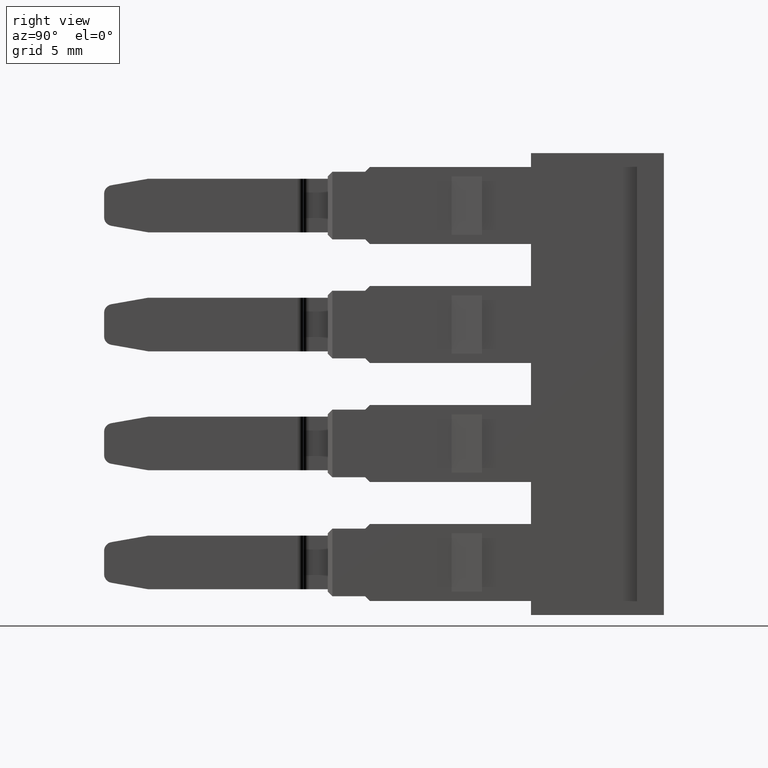
[diagram: clean part render]
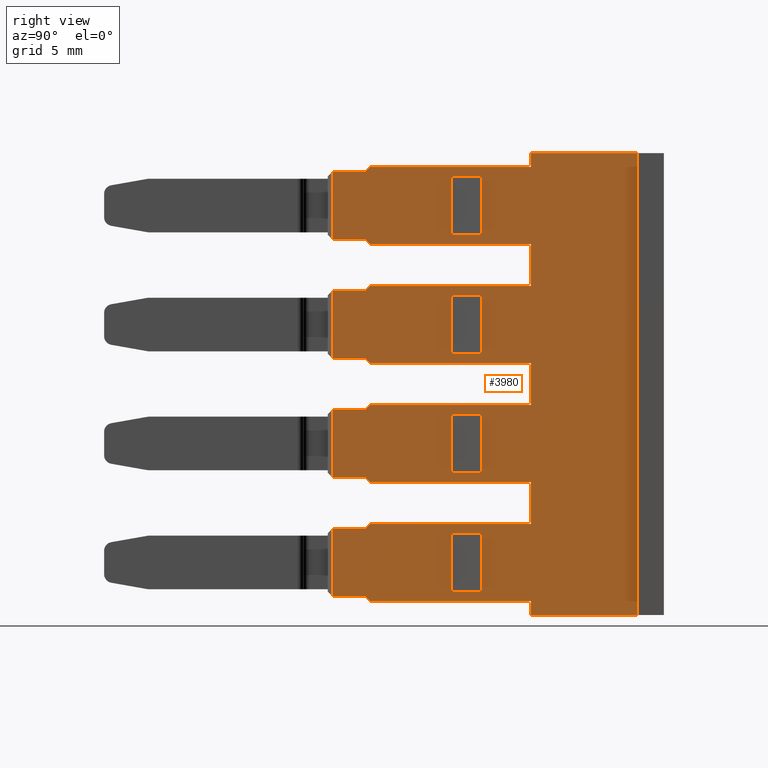
[diagram: same view with one face highlighted and labeled with its STEP entity id]
A machine part, right view. The second image highlights one B-rep face of the part: STEP entity #3980.
In plain terms, the highlighted planar face has unit normal (1, -0, 0).
Its self-contained STEP definition (entity closure, byte-faithful):
#33 = EDGE_LOOP ( 'NONE', ( #4130, #4099, #4142, #5327 ) ) ;
#44 = EDGE_LOOP ( 'NONE', ( #5335, #5314, #5322, #4113 ) ) ;
#181 = VERTEX_POINT ( 'NONE', #4825 ) ;
#183 = VERTEX_POINT ( 'NONE', #4777 ) ;
#185 = VERTEX_POINT ( 'NONE', #4865 ) ;
#186 = VERTEX_POINT ( 'NONE', #4863 ) ;
#201 = VERTEX_POINT ( 'NONE', #4874 ) ;
#220 = VERTEX_POINT ( 'NONE', #4867 ) ;
#221 = VERTEX_POINT ( 'NONE', #4853 ) ;
#223 = VERTEX_POINT ( 'NONE', #4886 ) ;
#224 = VERTEX_POINT ( 'NONE', #4839 ) ;
#225 = VERTEX_POINT ( 'NONE', #4846 ) ;
#232 = VERTEX_POINT ( 'NONE', #4854 ) ;
#235 = VERTEX_POINT ( 'NONE', #4857 ) ;
#238 = VERTEX_POINT ( 'NONE', #4860 ) ;
#239 = VERTEX_POINT ( 'NONE', #4861 ) ;
#240 = VERTEX_POINT ( 'NONE', #4862 ) ;
#241 = VERTEX_POINT ( 'NONE', #4895 ) ;
#244 = VERTEX_POINT ( 'NONE', #4944 ) ;
#245 = VERTEX_POINT ( 'NONE', #4902 ) ;
#246 = VERTEX_POINT ( 'NONE', #4933 ) ;
#248 = VERTEX_POINT ( 'NONE', #4953 ) ;
#249 = VERTEX_POINT ( 'NONE', #4952 ) ;
#250 = VERTEX_POINT ( 'NONE', #4940 ) ;
#251 = VERTEX_POINT ( 'NONE', #4930 ) ;
#252 = VERTEX_POINT ( 'NONE', #4929 ) ;
#254 = VERTEX_POINT ( 'NONE', #4942 ) ;
#255 = VERTEX_POINT ( 'NONE', #4905 ) ;
#256 = VERTEX_POINT ( 'NONE', #4938 ) ;
#257 = VERTEX_POINT ( 'NONE', #4903 ) ;
#258 = VERTEX_POINT ( 'NONE', #4943 ) ;
#260 = VERTEX_POINT ( 'NONE', #4928 ) ;
#261 = VERTEX_POINT ( 'NONE', #4906 ) ;
#262 = VERTEX_POINT ( 'NONE', #4926 ) ;
#263 = VERTEX_POINT ( 'NONE', #4911 ) ;
#264 = VERTEX_POINT ( 'NONE', #4924 ) ;
#265 = VERTEX_POINT ( 'NONE', #4934 ) ;
#266 = VERTEX_POINT ( 'NONE', #4948 ) ;
#270 = VERTEX_POINT ( 'NONE', #4927 ) ;
#271 = VERTEX_POINT ( 'NONE', #4937 ) ;
#272 = VERTEX_POINT ( 'NONE', #4916 ) ;
#273 = VERTEX_POINT ( 'NONE', #4946 ) ;
#274 = VERTEX_POINT ( 'NONE', #4909 ) ;
#275 = VERTEX_POINT ( 'NONE', #4954 ) ;
#277 = VERTEX_POINT ( 'NONE', #4935 ) ;
#284 = VERTEX_POINT ( 'NONE', #4947 ) ;
#285 = VERTEX_POINT ( 'NONE', #4951 ) ;
#286 = VERTEX_POINT ( 'NONE', #4897 ) ;
#287 = VERTEX_POINT ( 'NONE', #4955 ) ;
#289 = VERTEX_POINT ( 'NONE', #4956 ) ;
#290 = VERTEX_POINT ( 'NONE', #4900 ) ;
#291 = VERTEX_POINT ( 'NONE', #4904 ) ;
#295 = VERTEX_POINT ( 'NONE', #4912 ) ;
#297 = VERTEX_POINT ( 'NONE', #4914 ) ;
#609 = ORIENTED_EDGE ( 'NONE', *, *, #3549, .F. ) ;
#652 = EDGE_LOOP ( 'NONE', ( #609, #5333, #4089, #4131, #4110, #5312, #4109, #4140, #4138, #5329, #4101, #4116, #4128, #5321, #4114, #4117, #4106, #4119, #4124, #4105, #4107, #4091, #4108, #5328, #4104, #4090, #5319, #4120, #4103, #5318, #4135, #4125, #4102, #4121, #4137, #4112 ) ) ;
#661 = EDGE_LOOP ( 'NONE', ( #4134, #4095, #4122, #4136 ) ) ;
#666 = EDGE_LOOP ( 'NONE', ( #4132, #4092, #4118, #4115 ) ) ;
#751 = VECTOR ( 'NONE', #2114, 1000.000000000000000 ) ;
#755 = VECTOR ( 'NONE', #2096, 1000.000000000000000 ) ;
#791 = VECTOR ( 'NONE', #2244, 1000.000000000000000 ) ;
#792 = VECTOR ( 'NONE', #2227, 1000.000000000000000 ) ;
#793 = VECTOR ( 'NONE', #2170, 1000.000000000000000 ) ;
#796 = VECTOR ( 'NONE', #2161, 1000.000000000000000 ) ;
#798 = VECTOR ( 'NONE', #2301, 1000.000000000000000 ) ;
#799 = VECTOR ( 'NONE', #2133, 1000.000000000000000 ) ;
#802 = VECTOR ( 'NONE', #2305, 1000.000000000000000 ) ;
#803 = VECTOR ( 'NONE', #2103, 1000.000000000000000 ) ;
#804 = VECTOR ( 'NONE', #2344, 1000.000000000000000 ) ;
#806 = VECTOR ( 'NONE', #2321, 1000.000000000000000 ) ;
#808 = VECTOR ( 'NONE', #2175, 1000.000000000000000 ) ;
#809 = VECTOR ( 'NONE', #2336, 1000.000000000000100 ) ;
#811 = VECTOR ( 'NONE', #2257, 1000.000000000000000 ) ;
#812 = VECTOR ( 'NONE', #2167, 1000.000000000000000 ) ;
#815 = VECTOR ( 'NONE', #2119, 1000.000000000000000 ) ;
#819 = VECTOR ( 'NONE', #2293, 1000.000000000000000 ) ;
#821 = VECTOR ( 'NONE', #2157, 1000.000000000000000 ) ;
#822 = VECTOR ( 'NONE', #2154, 1000.000000000000000 ) ;
#823 = VECTOR ( 'NONE', #2146, 1000.000000000000000 ) ;
#825 = VECTOR ( 'NONE', #2229, 1000.000000000000000 ) ;
#828 = VECTOR ( 'NONE', #2252, 1000.000000000000000 ) ;
#832 = VECTOR ( 'NONE', #2300, 1000.000000000000000 ) ;
#833 = VECTOR ( 'NONE', #2355, 1000.000000000000000 ) ;
#834 = VECTOR ( 'NONE', #2397, 1000.000000000000000 ) ;
#835 = VECTOR ( 'NONE', #2118, 1000.000000000000000 ) ;
#836 = VECTOR ( 'NONE', #2210, 1000.000000000000000 ) ;
#842 = VECTOR ( 'NONE', #2359, 1000.000000000000000 ) ;
#845 = VECTOR ( 'NONE', #2415, 1000.000000000000000 ) ;
#846 = VECTOR ( 'NONE', #2454, 1000.000000000000000 ) ;
#848 = VECTOR ( 'NONE', #2361, 1000.000000000000000 ) ;
#857 = VECTOR ( 'NONE', #2447, 1000.000000000000000 ) ;
#858 = VECTOR ( 'NONE', #2386, 1000.000000000000000 ) ;
#859 = VECTOR ( 'NONE', #2490, 1000.000000000000100 ) ;
#860 = VECTOR ( 'NONE', #2466, 1000.000000000000000 ) ;
#863 = VECTOR ( 'NONE', #2353, 1000.000000000000000 ) ;
#866 = VECTOR ( 'NONE', #2529, 1000.000000000000000 ) ;
#868 = VECTOR ( 'NONE', #2534, 1000.000000000000000 ) ;
#877 = VECTOR ( 'NONE', #2747, 1000.000000000000000 ) ;
#878 = VECTOR ( 'NONE', #2746, 1000.000000000000000 ) ;
#888 = VECTOR ( 'NONE', #2672, 1000.000000000000000 ) ;
#897 = VECTOR ( 'NONE', #2558, 1000.000000000000000 ) ;
#903 = VECTOR ( 'NONE', #2714, 1000.000000000000000 ) ;
#905 = VECTOR ( 'NONE', #2631, 1000.000000000000000 ) ;
#906 = VECTOR ( 'NONE', #2728, 1000.000000000000000 ) ;
#907 = VECTOR ( 'NONE', #2750, 1000.000000000000000 ) ;
#909 = VECTOR ( 'NONE', #2667, 1000.000000000000000 ) ;
#917 = VECTOR ( 'NONE', #2737, 1000.000000000000000 ) ;
#920 = VECTOR ( 'NONE', #2660, 1000.000000000000000 ) ;
#921 = VECTOR ( 'NONE', #2578, 1000.000000000000000 ) ;
#951 = VECTOR ( 'NONE', #2828, 1000.000000000000000 ) ;
#1304 = AXIS2_PLACEMENT_3D ( 'NONE', #1478, #1489, #1490 ) ;
#1472 = PLANE ( 'NONE',  #1304 ) ;
#1478 = CARTESIAN_POINT ( 'NONE',  ( 1459.239907072214000, 985.7826795374931000, -30.13084736897824800 ) ) ;
#1483 = FACE_OUTER_BOUND ( 'NONE', #652, .T. ) ;
#1484 = FACE_BOUND ( 'NONE', #44, .T. ) ;
#1488 = FACE_BOUND ( 'NONE', #33, .T. ) ;
#1489 = DIRECTION ( 'NONE',  ( 1.000000000000000000, -6.401193638283130500E-015, 1.715124499442844000E-015 ) ) ;
#1490 = DIRECTION ( 'NONE',  ( 6.401193638283130500E-015, 1.000000000000000000, 0.0000000000000000000 ) ) ;
#1518 = FACE_BOUND ( 'NONE', #666, .T. ) ;
#1524 = FACE_BOUND ( 'NONE', #661, .T. ) ;
#2069 = LINE ( 'NONE', #2083, #799 ) ;
#2071 = CARTESIAN_POINT ( 'NONE',  ( 1459.239907072214000, 983.9946795374847900, 25.75167590508090100 ) ) ;
#2079 = LINE ( 'NONE', #2134, #755 ) ;
#2081 = LINE ( 'NONE', #2180, #828 ) ;
#2083 = CARTESIAN_POINT ( 'NONE',  ( 1459.239907072214000, 986.0926795374931500, 26.75000000013442000 ) ) ;
#2086 = CARTESIAN_POINT ( 'NONE',  ( 1459.239907072214000, 977.0846795374963000, 32.25000000001619300 ) ) ;
#2089 = LINE ( 'NONE', #2221, #836 ) ;
#2091 = LINE ( 'NONE', #2112, #835 ) ;
#2093 = CARTESIAN_POINT ( 'NONE',  ( 1459.239907072213800, 977.4946795374849000, 22.05000000001619800 ) ) ;
#2096 = DIRECTION ( 'NONE',  ( -1.715124499442844000E-015, 1.097884403469707200E-029, 1.000000000000000000 ) ) ;
#2099 = LINE ( 'NONE', #2120, #821 ) ;
#2103 = DIRECTION ( 'NONE',  ( -0.0000000000000000000, 1.000000000000000000, 6.401193638283120300E-015 ) ) ;
#2107 = LINE ( 'NONE', #2216, #796 ) ;
#2112 = CARTESIAN_POINT ( 'NONE',  ( 1459.239907072214000, 981.8926795374923100, -30.13084736897824800 ) ) ;
#2114 = DIRECTION ( 'NONE',  ( -0.0000000000000000000, -1.000000000000000000, 6.401193638283150300E-015 ) ) ;
#2116 = LINE ( 'NONE', #2130, #751 ) ;
#2118 = DIRECTION ( 'NONE',  ( 1.715124499442844000E-015, -1.097884403469707200E-029, -1.000000000000000000 ) ) ;
#2119 = DIRECTION ( 'NONE',  ( 0.0000000000000000000, -0.7071067811852963500, -0.7071067811877986800 ) ) ;
#2120 = CARTESIAN_POINT ( 'NONE',  ( 1459.239907072213800, 977.4946795374846700, 32.25000000001619300 ) ) ;
#2130 = CARTESIAN_POINT ( 'NONE',  ( 1459.239907072213800, 986.7826795374850200, 13.85000000014702000 ) ) ;
#2133 = DIRECTION ( 'NONE',  ( 6.401193638283130500E-015, 1.000000000000000000, 0.0000000000000000000 ) ) ;
#2134 = CARTESIAN_POINT ( 'NONE',  ( 1459.239907072214000, 980.5926795374923600, -30.13084736897824800 ) ) ;
#2135 = LINE ( 'NONE', #2152, #803 ) ;
#2144 = LINE ( 'NONE', #2086, #815 ) ;
#2146 = DIRECTION ( 'NONE',  ( -0.0000000000000000000, 0.0000000000000000000, 1.000000000000000000 ) ) ;
#2151 = LINE ( 'NONE', #2093, #822 ) ;
#2152 = CARTESIAN_POINT ( 'NONE',  ( 1459.239907072213600, 975.4846795374918400, 29.15000000013439100 ) ) ;
#2154 = DIRECTION ( 'NONE',  ( -0.0000000000000000000, 1.000000000000000000, 4.625429814819059500E-014 ) ) ;
#2157 = DIRECTION ( 'NONE',  ( -0.0000000000000000000, 1.000000000000000000, 4.625429814819059500E-014 ) ) ;
#2158 = LINE ( 'NONE', #2071, #823 ) ;
#2161 = DIRECTION ( 'NONE',  ( 1.715124499442844000E-015, -1.097884403469707200E-029, -1.000000000000000000 ) ) ;
#2163 = CARTESIAN_POINT ( 'NONE',  ( 1459.239907072214000, 983.9946795374846700, 30.85167590508090300 ) ) ;
#2167 = DIRECTION ( 'NONE',  ( -0.0000000000000000000, 0.0000000000000000000, 1.000000000000000000 ) ) ;
#2170 = DIRECTION ( 'NONE',  ( -0.0000000000000000000, 1.000000000000000000, 6.401193638283120300E-015 ) ) ;
#2171 = CARTESIAN_POINT ( 'NONE',  ( 1459.239907072214000, 986.0926795374931500, 31.85000000013441100 ) ) ;
#2173 = CARTESIAN_POINT ( 'NONE',  ( 1459.239907072213800, 977.4946795374847900, 27.15000000001619900 ) ) ;
#2175 = DIRECTION ( 'NONE',  ( 6.401193638283130500E-015, 1.000000000000000000, 0.0000000000000000000 ) ) ;
#2177 = LINE ( 'NONE', #2223, #802 ) ;
#2180 = CARTESIAN_POINT ( 'NONE',  ( 1459.239907072214000, 988.5426795374916100, -30.13084736897824800 ) ) ;
#2184 = CARTESIAN_POINT ( 'NONE',  ( 1459.239907072214000, 983.9946795374930800, 16.25000000013470100 ) ) ;
#2189 = CARTESIAN_POINT ( 'NONE',  ( 1459.239907072213800, 977.1846795374920000, 16.95000000001635600 ) ) ;
#2196 = LINE ( 'NONE', #2171, #808 ) ;
#2201 = LINE ( 'NONE', #2173, #792 ) ;
#2208 = LINE ( 'NONE', #2163, #812 ) ;
#2210 = DIRECTION ( 'NONE',  ( 1.715124499442844000E-015, -1.097884403469707200E-029, -1.000000000000000000 ) ) ;
#2216 = CARTESIAN_POINT ( 'NONE',  ( 1459.239907072214000, 981.8926795374925400, -30.13084736897824800 ) ) ;
#2217 = LINE ( 'NONE', #2219, #793 ) ;
#2219 = CARTESIAN_POINT ( 'NONE',  ( 1459.239907072213600, 975.4846795374920700, 18.95000000013439500 ) ) ;
#2221 = CARTESIAN_POINT ( 'NONE',  ( 1459.239907072214000, 975.4826795374914400, -30.13084736897824800 ) ) ;
#2223 = CARTESIAN_POINT ( 'NONE',  ( 1459.239907072214000, 986.0926795374931500, 29.35000000013441100 ) ) ;
#2227 = DIRECTION ( 'NONE',  ( -0.0000000000000000000, 1.000000000000000000, 4.625429814819059500E-014 ) ) ;
#2229 = DIRECTION ( 'NONE',  ( 1.395409648180571800E-043, 1.000000000000000000, -2.711969594887275000E-029 ) ) ;
#2242 = LINE ( 'NONE', #2189, #825 ) ;
#2244 = DIRECTION ( 'NONE',  ( -0.0000000000000000000, 5.266048633100521000E-014, -1.000000000000000000 ) ) ;
#2252 = DIRECTION ( 'NONE',  ( -1.715124499442844000E-015, 1.097884403469707200E-029, 1.000000000000000000 ) ) ;
#2254 = LINE ( 'NONE', #2184, #791 ) ;
#2257 = DIRECTION ( 'NONE',  ( 1.715124499442844000E-015, -1.097884403469707200E-029, -1.000000000000000000 ) ) ;
#2260 = LINE ( 'NONE', #2281, #809 ) ;
#2265 = LINE ( 'NONE', #2284, #819 ) ;
#2268 = CARTESIAN_POINT ( 'NONE',  ( 1459.239907072214000, 986.8426795374827000, 32.84999999997480600 ) ) ;
#2274 = LINE ( 'NONE', #2318, #804 ) ;
#2281 = CARTESIAN_POINT ( 'NONE',  ( 1459.239907072214000, 976.8846795374842000, 13.85000000014733100 ) ) ;
#2284 = CARTESIAN_POINT ( 'NONE',  ( 1459.239907072214000, 975.4826795374915500, -30.13084736897824800 ) ) ;
#2288 = LINE ( 'NONE', #2268, #832 ) ;
#2293 = DIRECTION ( 'NONE',  ( 1.715124499442844000E-015, -1.097884403469707200E-029, -1.000000000000000000 ) ) ;
#2299 = LINE ( 'NONE', #2376, #834 ) ;
#2300 = DIRECTION ( 'NONE',  ( -0.0000000000000000000, 1.000000000000000000, 0.0000000000000000000 ) ) ;
#2301 = DIRECTION ( 'NONE',  ( 1.715124499442844000E-015, -1.097884403469707200E-029, -1.000000000000000000 ) ) ;
#2305 = DIRECTION ( 'NONE',  ( -6.401193638283130500E-015, -1.000000000000000000, -0.0000000000000000000 ) ) ;
#2310 = LINE ( 'NONE', #2326, #806 ) ;
#2315 = LINE ( 'NONE', #2331, #798 ) ;
#2318 = CARTESIAN_POINT ( 'NONE',  ( 1459.239907072213800, 976.8346795374909600, 24.10000000013441500 ) ) ;
#2321 = DIRECTION ( 'NONE',  ( 1.715124499442844000E-015, -1.097884403469707200E-029, -1.000000000000000000 ) ) ;
#2326 = CARTESIAN_POINT ( 'NONE',  ( 1459.239907072214000, 983.9946795374817200, -30.13084736897824800 ) ) ;
#2329 = LINE ( 'NONE', #2342, #811 ) ;
#2331 = CARTESIAN_POINT ( 'NONE',  ( 1459.239907072214000, 975.4826795374915500, -30.13084736897824800 ) ) ;
#2336 = DIRECTION ( 'NONE',  ( 0.0000000000000000000, 0.7071067811851001700, -0.7071067811879949700 ) ) ;
#2342 = CARTESIAN_POINT ( 'NONE',  ( 1459.239907072214000, 983.9946795374847900, -30.13084736897824800 ) ) ;
#2344 = DIRECTION ( 'NONE',  ( -0.0000000000000000000, 0.7071067811866059700, -0.7071067811864890600 ) ) ;
#2349 = LINE ( 'NONE', #2373, #833 ) ;
#2350 = CARTESIAN_POINT ( 'NONE',  ( 1459.239907072214000, 985.7826795374931000, 24.05000000013421900 ) ) ;
#2353 = DIRECTION ( 'NONE',  ( -0.0000000000000000000, -1.000000000000000000, -0.0000000000000000000 ) ) ;
#2355 = DIRECTION ( 'NONE',  ( 0.0000000000000000000, -0.7071067811855049600, -0.7071067811875901800 ) ) ;
#2357 = CARTESIAN_POINT ( 'NONE',  ( 1459.239907072214000, 980.5926795374924700, -30.13084736897824800 ) ) ;
#2359 = DIRECTION ( 'NONE',  ( -0.0000000000000000000, 1.000000000000000000, 6.401193638283120300E-015 ) ) ;
#2361 = DIRECTION ( 'NONE',  ( 0.0000000000000000000, 0.7071067811862776800, -0.7071067811868174700 ) ) ;
#2364 = LINE ( 'NONE', #2502, #846 ) ;
#2366 = CARTESIAN_POINT ( 'NONE',  ( 1459.239907072214000, 976.8846795374910200, 18.95000000013443400 ) ) ;
#2373 = CARTESIAN_POINT ( 'NONE',  ( 1459.239907072214000, 977.0846795374964100, 27.15000000001619200 ) ) ;
#2375 = CARTESIAN_POINT ( 'NONE',  ( 1459.239907072214000, 977.4946795374919500, 23.85000000013429800 ) ) ;
#2376 = CARTESIAN_POINT ( 'NONE',  ( 1459.239907072214000, 981.8926795374924300, -30.13084736897824800 ) ) ;
#2386 = DIRECTION ( 'NONE',  ( 6.401193638283130500E-015, 1.000000000000000000, 0.0000000000000000000 ) ) ;
#2393 = LINE ( 'NONE', #2456, #866 ) ;
#2395 = LINE ( 'NONE', #2366, #848 ) ;
#2397 = DIRECTION ( 'NONE',  ( 1.715124499442844000E-015, -1.097884403469707200E-029, -1.000000000000000000 ) ) ;
#2402 = LINE ( 'NONE', #2375, #863 ) ;
#2406 = LINE ( 'NONE', #2357, #845 ) ;
#2412 = LINE ( 'NONE', #2423, #842 ) ;
#2415 = DIRECTION ( 'NONE',  ( -1.715124499442844000E-015, 1.097884403469707200E-029, 1.000000000000000000 ) ) ;
#2420 = LINE ( 'NONE', #2350, #858 ) ;
#2423 = CARTESIAN_POINT ( 'NONE',  ( 1459.239907072214000, 986.7826795374848000, 32.05000000000361400 ) ) ;
#2445 = CARTESIAN_POINT ( 'NONE',  ( 1459.239907072214000, 976.8846795374908000, 29.15000000013441900 ) ) ;
#2447 = DIRECTION ( 'NONE',  ( 6.401193638283130500E-015, 1.000000000000000000, 0.0000000000000000000 ) ) ;
#2451 = LINE ( 'NONE', #2445, #859 ) ;
#2453 = LINE ( 'NONE', #2472, #860 ) ;
#2454 = DIRECTION ( 'NONE',  ( 0.0000000000000000000, -0.7071067811854926400, -0.7071067811876024000 ) ) ;
#2456 = CARTESIAN_POINT ( 'NONE',  ( 1459.239907072214000, 986.0926795374931500, 14.05000000013441800 ) ) ;
#2458 = CARTESIAN_POINT ( 'NONE',  ( 1459.239907072214000, 980.5926795374925900, -30.13084736897824800 ) ) ;
#2466 = DIRECTION ( 'NONE',  ( 1.715124499442844000E-015, -1.097884403469707200E-029, -1.000000000000000000 ) ) ;
#2468 = CARTESIAN_POINT ( 'NONE',  ( 1459.239907072214000, 986.0926795374931500, 21.65000000013441900 ) ) ;
#2472 = CARTESIAN_POINT ( 'NONE',  ( 1459.239907072214000, 975.4826795374916600, -30.13084736897824800 ) ) ;
#2490 = DIRECTION ( 'NONE',  ( 0.0000000000000000000, 0.7071067811863022100, -0.7071067811867928200 ) ) ;
#2502 = CARTESIAN_POINT ( 'NONE',  ( 1459.239907072214000, 977.0846795374965300, 22.05000000001619800 ) ) ;
#2510 = LINE ( 'NONE', #2458, #868 ) ;
#2527 = LINE ( 'NONE', #2468, #857 ) ;
#2529 = DIRECTION ( 'NONE',  ( -6.401193638283130500E-015, -1.000000000000000000, -0.0000000000000000000 ) ) ;
#2534 = DIRECTION ( 'NONE',  ( -1.715124499442844000E-015, 1.097884403469707200E-029, 1.000000000000000000 ) ) ;
#2553 = LINE ( 'NONE', #2637, #905 ) ;
#2555 = LINE ( 'NONE', #2576, #897 ) ;
#2558 = DIRECTION ( 'NONE',  ( -0.0000000000000000000, -1.000000000000000000, 4.625429814819059500E-014 ) ) ;
#2562 = CARTESIAN_POINT ( 'NONE',  ( 1459.239907072214000, 977.4946795374920600, 18.75000000013430000 ) ) ;
#2570 = LINE ( 'NONE', #2562, #921 ) ;
#2576 = CARTESIAN_POINT ( 'NONE',  ( 1459.239907072214000, 977.1846795374848400, 13.65000000013442400 ) ) ;
#2578 = DIRECTION ( 'NONE',  ( -0.0000000000000000000, -1.000000000000000000, -0.0000000000000000000 ) ) ;
#2631 = DIRECTION ( 'NONE',  ( -0.0000000000000000000, 1.000000000000000000, 6.401193638283120300E-015 ) ) ;
#2637 = CARTESIAN_POINT ( 'NONE',  ( 1459.239907072214000, 986.7826795374850200, 21.85000000000360400 ) ) ;
#2647 = LINE ( 'NONE', #2701, #888 ) ;
#2650 = LINE ( 'NONE', #2689, #920 ) ;
#2660 = DIRECTION ( 'NONE',  ( -9.302730987870479400E-044, -1.000000000000000000, 2.711969594887275000E-029 ) ) ;
#2662 = LINE ( 'NONE', #2670, #909 ) ;
#2667 = DIRECTION ( 'NONE',  ( -1.715124499442844000E-015, 1.097884403469707200E-029, 1.000000000000000000 ) ) ;
#2670 = CARTESIAN_POINT ( 'NONE',  ( 1459.239907072214000, 980.5926795374925900, -30.13084736897824800 ) ) ;
#2672 = DIRECTION ( 'NONE',  ( -0.0000000000000000000, -1.000000000000000000, -0.0000000000000000000 ) ) ;
#2676 = LINE ( 'NONE', #2680, #877 ) ;
#2680 = CARTESIAN_POINT ( 'NONE',  ( 1459.239907072214000, 977.0846795374909600, 16.95000000001636000 ) ) ;
#2689 = CARTESIAN_POINT ( 'NONE',  ( 1459.239907072214000, 986.8426795374829200, 13.05000000017583900 ) ) ;
#2701 = CARTESIAN_POINT ( 'NONE',  ( 1459.239907072214000, 977.4946795374918300, 28.95000000013430300 ) ) ;
#2710 = CARTESIAN_POINT ( 'NONE',  ( 1459.239907072214000, 981.8926795374925400, -30.13084736897824800 ) ) ;
#2714 = DIRECTION ( 'NONE',  ( -6.401193638283130500E-015, -1.000000000000000000, -0.0000000000000000000 ) ) ;
#2720 = LINE ( 'NONE', #2710, #906 ) ;
#2726 = LINE ( 'NONE', #2727, #903 ) ;
#2727 = CARTESIAN_POINT ( 'NONE',  ( 1459.239907072214000, 986.0926795374931500, 19.15000000013441600 ) ) ;
#2728 = DIRECTION ( 'NONE',  ( 1.715124499442844000E-015, -1.097884403469707200E-029, -1.000000000000000000 ) ) ;
#2736 = LINE ( 'NONE', #2775, #917 ) ;
#2737 = DIRECTION ( 'NONE',  ( -0.0000000000000000000, -1.000000000000000000, 6.401193638283150300E-015 ) ) ;
#2746 = DIRECTION ( 'NONE',  ( -0.0000000000000000000, 1.000000000000000000, 6.401193638283120300E-015 ) ) ;
#2747 = DIRECTION ( 'NONE',  ( 0.0000000000000000000, -0.7071067811861918600, -0.7071067811869032900 ) ) ;
#2748 = LINE ( 'NONE', #2780, #907 ) ;
#2750 = DIRECTION ( 'NONE',  ( -6.401193638283130500E-015, -1.000000000000000000, -0.0000000000000000000 ) ) ;
#2775 = CARTESIAN_POINT ( 'NONE',  ( 1459.239907072213800, 975.4846795374920700, 16.75000000001621500 ) ) ;
#2778 = LINE ( 'NONE', #2808, #878 ) ;
#2780 = CARTESIAN_POINT ( 'NONE',  ( 1459.239907072214000, 986.0926795374931500, 24.25000000013441700 ) ) ;
#2808 = CARTESIAN_POINT ( 'NONE',  ( 1459.239907072214000, 986.7826795374849100, 26.95000000000360200 ) ) ;
#2823 = CARTESIAN_POINT ( 'NONE',  ( 1459.239907072214000, 986.0926795374931500, 16.55000000013441800 ) ) ;
#2828 = DIRECTION ( 'NONE',  ( 6.401193638283130500E-015, 1.000000000000000000, 0.0000000000000000000 ) ) ;
#2843 = LINE ( 'NONE', #2823, #951 ) ;
#3537 = EDGE_CURVE ( 'NONE', #201, #221, #2116, .T. ) ;
#3538 = EDGE_CURVE ( 'NONE', #186, #286, #2079, .T. ) ;
#3541 = EDGE_CURVE ( 'NONE', #241, #251, #2091, .T. ) ;
#3542 = EDGE_CURVE ( 'NONE', #274, #291, #2151, .T. ) ;
#3543 = EDGE_CURVE ( 'NONE', #289, #295, #2069, .T. ) ;
#3545 = EDGE_CURVE ( 'NONE', #270, #235, #2099, .T. ) ;
#3547 = EDGE_CURVE ( 'NONE', #273, #258, #2135, .T. ) ;
#3549 = EDGE_CURVE ( 'NONE', #291, #287, #2158, .T. ) ;
#3550 = EDGE_CURVE ( 'NONE', #270, #183, #2144, .T. ) ;
#3551 = EDGE_CURVE ( 'NONE', #181, #273, #2089, .T. ) ;
#3554 = EDGE_CURVE ( 'NONE', #245, #224, #2081, .T. ) ;
#3557 = EDGE_CURVE ( 'NONE', #220, #240, #2242, .T. ) ;
#3558 = EDGE_CURVE ( 'NONE', #297, #239, #2107, .T. ) ;
#3560 = EDGE_CURVE ( 'NONE', #286, #241, #2196, .T. ) ;
#3561 = EDGE_CURVE ( 'NONE', #266, #240, #2254, .T. ) ;
#3562 = EDGE_CURVE ( 'NONE', #263, #249, #2217, .T. ) ;
#3564 = EDGE_CURVE ( 'NONE', #185, #264, #2201, .T. ) ;
#3565 = EDGE_CURVE ( 'NONE', #264, #284, #2208, .T. ) ;
#3566 = EDGE_CURVE ( 'NONE', #251, #186, #2177, .T. ) ;
#3567 = EDGE_CURVE ( 'NONE', #277, #272, #2274, .T. ) ;
#3570 = EDGE_CURVE ( 'NONE', #260, #235, #2310, .T. ) ;
#3573 = EDGE_CURVE ( 'NONE', #238, #221, #2315, .T. ) ;
#3577 = EDGE_CURVE ( 'NONE', #201, #261, #2260, .T. ) ;
#3578 = EDGE_CURVE ( 'NONE', #254, #252, #2329, .T. ) ;
#3579 = EDGE_CURVE ( 'NONE', #260, #224, #2288, .T. ) ;
#3580 = EDGE_CURVE ( 'NONE', #262, #232, #2265, .T. ) ;
#3581 = EDGE_CURVE ( 'NONE', #295, #275, #2299, .T. ) ;
#3582 = EDGE_CURVE ( 'NONE', #185, #265, #2349, .T. ) ;
#3583 = EDGE_CURVE ( 'NONE', #257, #289, #2406, .T. ) ;
#3584 = EDGE_CURVE ( 'NONE', #249, #285, #2395, .T. ) ;
#3585 = EDGE_CURVE ( 'NONE', #287, #272, #2402, .T. ) ;
#3590 = EDGE_CURVE ( 'NONE', #232, #277, #2420, .T. ) ;
#3595 = EDGE_CURVE ( 'NONE', #181, #183, #2412, .T. ) ;
#3597 = EDGE_CURVE ( 'NONE', #258, #250, #2451, .T. ) ;
#3598 = EDGE_CURVE ( 'NONE', #225, #263, #2453, .T. ) ;
#3599 = EDGE_CURVE ( 'NONE', #256, #297, #2527, .T. ) ;
#3601 = EDGE_CURVE ( 'NONE', #274, #290, #2364, .T. ) ;
#3604 = EDGE_CURVE ( 'NONE', #271, #255, #2393, .T. ) ;
#3606 = EDGE_CURVE ( 'NONE', #244, #256, #2510, .T. ) ;
#3624 = EDGE_CURVE ( 'NONE', #225, #290, #2553, .T. ) ;
#3626 = EDGE_CURVE ( 'NONE', #254, #261, #2555, .T. ) ;
#3627 = EDGE_CURVE ( 'NONE', #266, #285, #2570, .T. ) ;
#3633 = EDGE_CURVE ( 'NONE', #245, #252, #2650, .T. ) ;
#3634 = EDGE_CURVE ( 'NONE', #284, #250, #2647, .T. ) ;
#3638 = EDGE_CURVE ( 'NONE', #223, #271, #2720, .T. ) ;
#3639 = EDGE_CURVE ( 'NONE', #255, #246, #2662, .T. ) ;
#3641 = EDGE_CURVE ( 'NONE', #239, #244, #2726, .T. ) ;
#3644 = EDGE_CURVE ( 'NONE', #220, #248, #2676, .T. ) ;
#3650 = EDGE_CURVE ( 'NONE', #248, #238, #2736, .T. ) ;
#3651 = EDGE_CURVE ( 'NONE', #262, #265, #2778, .T. ) ;
#3652 = EDGE_CURVE ( 'NONE', #275, #257, #2748, .T. ) ;
#3665 = EDGE_CURVE ( 'NONE', #246, #223, #2843, .T. ) ;
#3980 = ADVANCED_FACE ( 'NONE', ( #1483, #1518, #1484, #1488, #1524 ), #1472, .T. ) ;
#4089 = ORIENTED_EDGE ( 'NONE', *, *, #3601, .T. ) ;
#4090 = ORIENTED_EDGE ( 'NONE', *, *, #3547, .T. ) ;
#4091 = ORIENTED_EDGE ( 'NONE', *, *, #3545, .F. ) ;
#4092 = ORIENTED_EDGE ( 'NONE', *, *, #3560, .T. ) ;
#4095 = ORIENTED_EDGE ( 'NONE', *, *, #3665, .T. ) ;
#4099 = ORIENTED_EDGE ( 'NONE', *, *, #3543, .T. ) ;
#4101 = ORIENTED_EDGE ( 'NONE', *, *, #3644, .T. ) ;
#4102 = ORIENTED_EDGE ( 'NONE', *, *, #3580, .T. ) ;
#4103 = ORIENTED_EDGE ( 'NONE', *, *, #3565, .F. ) ;
#4104 = ORIENTED_EDGE ( 'NONE', *, *, #3551, .T. ) ;
#4105 = ORIENTED_EDGE ( 'NONE', *, *, #3579, .F. ) ;
#4106 = ORIENTED_EDGE ( 'NONE', *, *, #3578, .T. ) ;
#4107 = ORIENTED_EDGE ( 'NONE', *, *, #3570, .T. ) ;
#4108 = ORIENTED_EDGE ( 'NONE', *, *, #3550, .T. ) ;
#4109 = ORIENTED_EDGE ( 'NONE', *, *, #3584, .T. ) ;
#4110 = ORIENTED_EDGE ( 'NONE', *, *, #3598, .T. ) ;
#4112 = ORIENTED_EDGE ( 'NONE', *, *, #3585, .F. ) ;
#4113 = ORIENTED_EDGE ( 'NONE', *, *, #3641, .T. ) ;
#4114 = ORIENTED_EDGE ( 'NONE', *, *, #3577, .T. ) ;
#4115 = ORIENTED_EDGE ( 'NONE', *, *, #3566, .T. ) ;
#4116 = ORIENTED_EDGE ( 'NONE', *, *, #3650, .T. ) ;
#4117 = ORIENTED_EDGE ( 'NONE', *, *, #3626, .F. ) ;
#4118 = ORIENTED_EDGE ( 'NONE', *, *, #3541, .T. ) ;
#4119 = ORIENTED_EDGE ( 'NONE', *, *, #3633, .F. ) ;
#4120 = ORIENTED_EDGE ( 'NONE', *, *, #3634, .F. ) ;
#4121 = ORIENTED_EDGE ( 'NONE', *, *, #3590, .T. ) ;
#4122 = ORIENTED_EDGE ( 'NONE', *, *, #3638, .T. ) ;
#4124 = ORIENTED_EDGE ( 'NONE', *, *, #3554, .T. ) ;
#4125 = ORIENTED_EDGE ( 'NONE', *, *, #3651, .F. ) ;
#4128 = ORIENTED_EDGE ( 'NONE', *, *, #3573, .T. ) ;
#4130 = ORIENTED_EDGE ( 'NONE', *, *, #3583, .T. ) ;
#4131 = ORIENTED_EDGE ( 'NONE', *, *, #3624, .F. ) ;
#4132 = ORIENTED_EDGE ( 'NONE', *, *, #3538, .T. ) ;
#4134 = ORIENTED_EDGE ( 'NONE', *, *, #3639, .T. ) ;
#4135 = ORIENTED_EDGE ( 'NONE', *, *, #3582, .T. ) ;
#4136 = ORIENTED_EDGE ( 'NONE', *, *, #3604, .T. ) ;
#4137 = ORIENTED_EDGE ( 'NONE', *, *, #3567, .T. ) ;
#4138 = ORIENTED_EDGE ( 'NONE', *, *, #3561, .T. ) ;
#4140 = ORIENTED_EDGE ( 'NONE', *, *, #3627, .F. ) ;
#4142 = ORIENTED_EDGE ( 'NONE', *, *, #3581, .T. ) ;
#4777 = CARTESIAN_POINT ( 'NONE',  ( 1459.239907072214000, 976.8846795374840900, 32.05000000000344300 ) ) ;
#4825 = CARTESIAN_POINT ( 'NONE',  ( 1459.239907072214000, 975.4826795374915500, 32.05000000000349300 ) ) ;
#4839 = CARTESIAN_POINT ( 'NONE',  ( 1459.239907072214000, 988.5426795374916100, 32.84999999997480600 ) ) ;
#4846 = CARTESIAN_POINT ( 'NONE',  ( 1459.239907072214000, 975.4826795374917800, 21.85000000000348300 ) ) ;
#4853 = CARTESIAN_POINT ( 'NONE',  ( 1459.239907072214000, 975.4826795374915500, 13.85000000014724000 ) ) ;
#4854 = CARTESIAN_POINT ( 'NONE',  ( 1459.239907072213800, 975.4826795374913200, 24.05000000013406900 ) ) ;
#4857 = CARTESIAN_POINT ( 'NONE',  ( 1459.239907072214000, 983.9946795374838800, 32.25000000001649900 ) ) ;
#4860 = CARTESIAN_POINT ( 'NONE',  ( 1459.239907072214000, 975.4826795374915500, 16.75000000001604400 ) ) ;
#4861 = CARTESIAN_POINT ( 'NONE',  ( 1459.239907072214700, 981.8926795374925400, 19.15000000013441600 ) ) ;
#4862 = CARTESIAN_POINT ( 'NONE',  ( 1459.239907072214000, 983.9946795374929700, 16.95000000001635600 ) ) ;
#4863 = CARTESIAN_POINT ( 'NONE',  ( 1459.239907072214700, 980.5926795374923600, 29.35000000013441500 ) ) ;
#4865 = CARTESIAN_POINT ( 'NONE',  ( 1459.239907072214000, 977.0846795374966400, 27.15000000001611400 ) ) ;
#4867 = CARTESIAN_POINT ( 'NONE',  ( 1459.239907072214000, 977.0846795374909600, 16.95000000001629600 ) ) ;
#4874 = CARTESIAN_POINT ( 'NONE',  ( 1459.239907072214000, 976.8846795374842000, 13.85000000014721000 ) ) ;
#4886 = CARTESIAN_POINT ( 'NONE',  ( 1459.239907072214500, 981.8926795374925400, 16.55000000013441800 ) ) ;
#4895 = CARTESIAN_POINT ( 'NONE',  ( 1459.239907072214500, 981.8926795374923100, 31.85000000013441100 ) ) ;
#4897 = CARTESIAN_POINT ( 'NONE',  ( 1459.239907072214500, 980.5926795374911100, 31.85000000013441100 ) ) ;
#4900 = CARTESIAN_POINT ( 'NONE',  ( 1459.239907072214000, 976.8846795374842000, 21.85000000000341900 ) ) ;
#4902 = CARTESIAN_POINT ( 'NONE',  ( 1459.239907072214000, 988.5426795374916100, 13.05000000017584000 ) ) ;
#4903 = CARTESIAN_POINT ( 'NONE',  ( 1459.239907072214700, 980.5926795374924700, 24.25000000013441700 ) ) ;
#4904 = CARTESIAN_POINT ( 'NONE',  ( 1459.239907072214000, 983.9946795374867200, 22.05000000001650000 ) ) ;
#4905 = CARTESIAN_POINT ( 'NONE',  ( 1459.239907072214700, 980.5926795374925900, 14.05000000013441800 ) ) ;
#4906 = CARTESIAN_POINT ( 'NONE',  ( 1459.239907072214000, 977.0846795374964100, 13.65000000013453600 ) ) ;
#4909 = CARTESIAN_POINT ( 'NONE',  ( 1459.239907072214000, 977.0846795374967500, 22.05000000001611600 ) ) ;
#4911 = CARTESIAN_POINT ( 'NONE',  ( 1459.239907072213600, 975.4826795374914400, 18.95000000013422100 ) ) ;
#4912 = CARTESIAN_POINT ( 'NONE',  ( 1459.239907072214500, 981.8926795374924300, 26.75000000013442000 ) ) ;
#4914 = CARTESIAN_POINT ( 'NONE',  ( 1459.239907072214500, 981.8926795374925400, 21.65000000013441900 ) ) ;
#4916 = CARTESIAN_POINT ( 'NONE',  ( 1459.239907072214000, 977.0846795374909600, 23.85000000013431900 ) ) ;
#4924 = CARTESIAN_POINT ( 'NONE',  ( 1459.239907072214000, 983.9946795374867200, 27.15000000001650100 ) ) ;
#4926 = CARTESIAN_POINT ( 'NONE',  ( 1459.239907072214000, 975.4826795374915500, 26.95000000000348500 ) ) ;
#4927 = CARTESIAN_POINT ( 'NONE',  ( 1459.239907072214000, 977.0846795374965300, 32.25000000001611500 ) ) ;
#4928 = CARTESIAN_POINT ( 'NONE',  ( 1459.239907072214000, 983.9946795374831900, 32.84999999997480600 ) ) ;
#4929 = CARTESIAN_POINT ( 'NONE',  ( 1459.239907072214000, 983.9946795374847900, 13.05000000017583700 ) ) ;
#4930 = CARTESIAN_POINT ( 'NONE',  ( 1459.239907072214700, 981.8926795374923100, 29.35000000013441500 ) ) ;
#4933 = CARTESIAN_POINT ( 'NONE',  ( 1459.239907072214500, 980.5926795374913400, 16.55000000013441800 ) ) ;
#4934 = CARTESIAN_POINT ( 'NONE',  ( 1459.239907072214000, 976.8846795374840900, 26.95000000000342100 ) ) ;
#4935 = CARTESIAN_POINT ( 'NONE',  ( 1459.239907072213800, 976.8846795374910200, 24.05000000013431500 ) ) ;
#4937 = CARTESIAN_POINT ( 'NONE',  ( 1459.239907072214700, 981.8926795374925400, 14.05000000013441800 ) ) ;
#4938 = CARTESIAN_POINT ( 'NONE',  ( 1459.239907072214500, 980.5926795374913400, 21.65000000013441900 ) ) ;
#4940 = CARTESIAN_POINT ( 'NONE',  ( 1459.239907072214000, 977.0846795374907300, 28.95000000013432000 ) ) ;
#4942 = CARTESIAN_POINT ( 'NONE',  ( 1459.239907072214000, 983.9946795374838800, 13.65000000013420100 ) ) ;
#4943 = CARTESIAN_POINT ( 'NONE',  ( 1459.239907072213800, 976.8846795374908000, 29.15000000013435900 ) ) ;
#4944 = CARTESIAN_POINT ( 'NONE',  ( 1459.239907072214700, 980.5926795374925900, 19.15000000013441600 ) ) ;
#4946 = CARTESIAN_POINT ( 'NONE',  ( 1459.239907072213600, 975.4826795374912100, 29.15000000013421300 ) ) ;
#4947 = CARTESIAN_POINT ( 'NONE',  ( 1459.239907072214000, 983.9946795374887600, 28.95000000013429900 ) ) ;
#4948 = CARTESIAN_POINT ( 'NONE',  ( 1459.239907072214000, 983.9946795374929700, 18.75000000013430700 ) ) ;
#4951 = CARTESIAN_POINT ( 'NONE',  ( 1459.239907072214000, 977.0846795374909600, 18.75000000013431700 ) ) ;
#4952 = CARTESIAN_POINT ( 'NONE',  ( 1459.239907072213800, 976.8846795374910200, 18.95000000013435900 ) ) ;
#4953 = CARTESIAN_POINT ( 'NONE',  ( 1459.239907072214000, 976.8846795374910200, 16.75000000001619300 ) ) ;
#4954 = CARTESIAN_POINT ( 'NONE',  ( 1459.239907072214700, 981.8926795374924300, 24.25000000013441700 ) ) ;
#4955 = CARTESIAN_POINT ( 'NONE',  ( 1459.239907072214000, 983.9946795374887600, 23.85000000013429800 ) ) ;
#4956 = CARTESIAN_POINT ( 'NONE',  ( 1459.239907072214500, 980.5926795374911100, 26.75000000013442000 ) ) ;
#5312 = ORIENTED_EDGE ( 'NONE', *, *, #3562, .T. ) ;
#5314 = ORIENTED_EDGE ( 'NONE', *, *, #3599, .T. ) ;
#5318 = ORIENTED_EDGE ( 'NONE', *, *, #3564, .F. ) ;
#5319 = ORIENTED_EDGE ( 'NONE', *, *, #3597, .T. ) ;
#5321 = ORIENTED_EDGE ( 'NONE', *, *, #3537, .F. ) ;
#5322 = ORIENTED_EDGE ( 'NONE', *, *, #3558, .T. ) ;
#5327 = ORIENTED_EDGE ( 'NONE', *, *, #3652, .T. ) ;
#5328 = ORIENTED_EDGE ( 'NONE', *, *, #3595, .F. ) ;
#5329 = ORIENTED_EDGE ( 'NONE', *, *, #3557, .F. ) ;
#5333 = ORIENTED_EDGE ( 'NONE', *, *, #3542, .F. ) ;
#5335 = ORIENTED_EDGE ( 'NONE', *, *, #3606, .T. ) ;